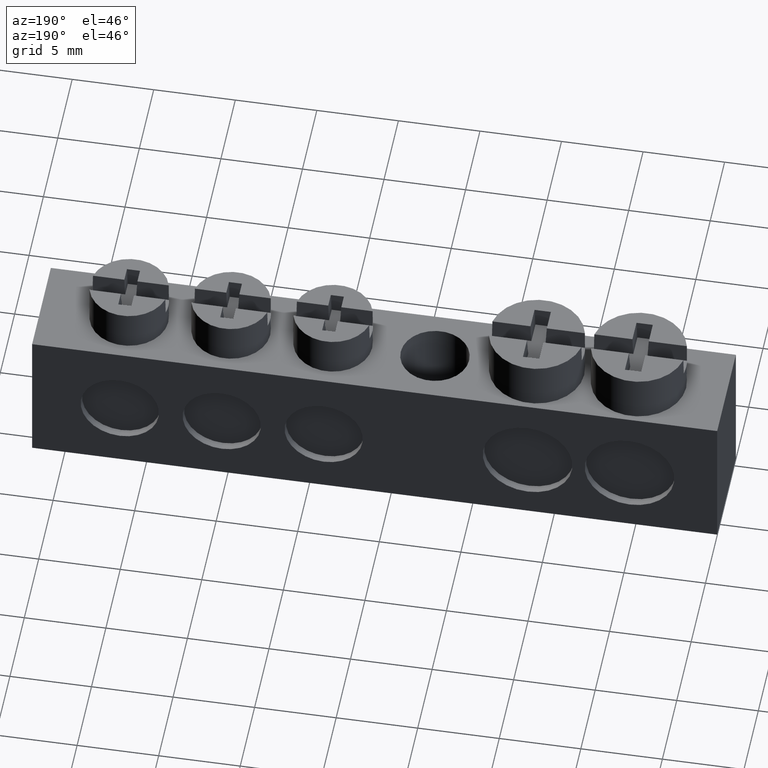
[diagram: clean part render]
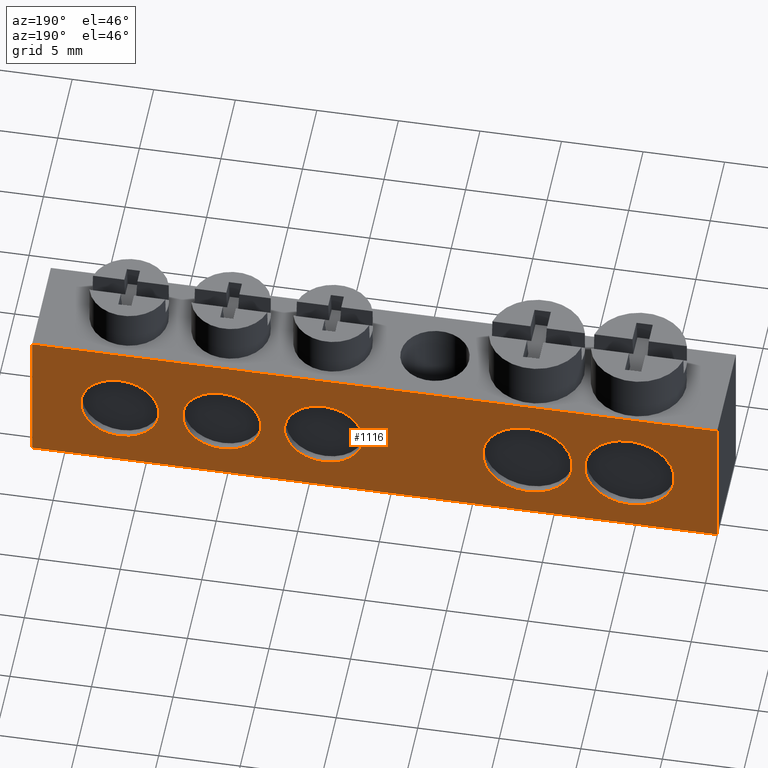
[diagram: same view with one face highlighted and labeled with its STEP entity id]
A machine part, auxiliary view. The second image highlights one B-rep face of the part: STEP entity #1116.
In plain terms, the highlighted planar face has unit normal (0, -1, 0).
Its self-contained STEP definition (entity closure, byte-faithful):
#191 = DIRECTION ( 'NONE',  ( -0.0000000000000000000, 1.000000000000000000, -0.0000000000000000000 ) ) ;
#193 = CARTESIAN_POINT ( 'NONE',  ( 24.02500000000000200, 6.500000000000001800, 4.399999999999915100 ) ) ;
#205 = DIRECTION ( 'NONE',  ( 0.0000000000000000000, 0.0000000000000000000, -1.000000000000000000 ) ) ;
#209 = DIRECTION ( 'NONE',  ( 0.0000000000000000000, 0.0000000000000000000, -1.000000000000000000 ) ) ;
#216 = CARTESIAN_POINT ( 'NONE',  ( 30.27499999999999900, 6.500000000000001800, 4.399999999999955100 ) ) ;
#221 = DIRECTION ( 'NONE',  ( -0.0000000000000000000, 1.000000000000000000, -0.0000000000000000000 ) ) ;
#238 = CARTESIAN_POINT ( 'NONE',  ( 36.52499999999999900, 6.500000000000001800, 4.400000000000000400 ) ) ;
#250 = DIRECTION ( 'NONE',  ( 0.0000000000000000000, 0.0000000000000000000, -1.000000000000000000 ) ) ;
#265 = DIRECTION ( 'NONE',  ( -0.0000000000000000000, 1.000000000000000000, -0.0000000000000000000 ) ) ;
#370 = CARTESIAN_POINT ( 'NONE',  ( 11.52500000000000000, 6.500000000000001800, 4.400000000000000400 ) ) ;
#371 = DIRECTION ( 'NONE',  ( 0.0000000000000000000, 0.0000000000000000000, -1.000000000000000000 ) ) ;
#372 = DIRECTION ( 'NONE',  ( -0.0000000000000000000, 1.000000000000000000, -0.0000000000000000000 ) ) ;
#380 = CARTESIAN_POINT ( 'NONE',  ( 5.275000000000000400, 6.500000000000001800, 4.400000000000000400 ) ) ;
#384 = DIRECTION ( 'NONE',  ( 0.0000000000000000000, 0.0000000000000000000, -1.000000000000000000 ) ) ;
#390 = DIRECTION ( 'NONE',  ( -0.0000000000000000000, 1.000000000000000000, -0.0000000000000000000 ) ) ;
#892 = EDGE_LOOP ( 'NONE', ( #2789, #2791 ) ) ;
#893 = EDGE_LOOP ( 'NONE', ( #2845, #2784, #2848, #2828 ) ) ;
#939 = EDGE_LOOP ( 'NONE', ( #2851, #2750 ) ) ;
#969 = EDGE_LOOP ( 'NONE', ( #2792, #2805 ) ) ;
#977 = EDGE_LOOP ( 'NONE', ( #2766, #2771 ) ) ;
#995 = EDGE_LOOP ( 'NONE', ( #2747, #2835 ) ) ;
#1116 = ADVANCED_FACE ( 'NONE', ( #3526, #3484, #3508, #3486, #3509, #3498 ), #3491, .F. ) ;
#1161 = EDGE_CURVE ( 'NONE', #2818, #2872, #1571, .T. ) ;
#1162 = EDGE_CURVE ( 'NONE', #2885, #2876, #1606, .T. ) ;
#1170 = EDGE_CURVE ( 'NONE', #2821, #2881, #1565, .T. ) ;
#1210 = EDGE_CURVE ( 'NONE', #2958, #2947, #1646, .T. ) ;
#1216 = EDGE_CURVE ( 'NONE', #2972, #2927, #1654, .T. ) ;
#1375 = EDGE_CURVE ( 'NONE', #3052, #3030, #1837, .T. ) ;
#1388 = EDGE_CURVE ( 'NONE', #3030, #3049, #1753, .T. ) ;
#1396 = EDGE_CURVE ( 'NONE', #2872, #2818, #2005, .T. ) ;
#1397 = EDGE_CURVE ( 'NONE', #3005, #3052, #1878, .T. ) ;
#1403 = EDGE_CURVE ( 'NONE', #2947, #2958, #1999, .T. ) ;
#1406 = EDGE_CURVE ( 'NONE', #2927, #2972, #2065, .T. ) ;
#1409 = EDGE_CURVE ( 'NONE', #2876, #2885, #2061, .T. ) ;
#1414 = EDGE_CURVE ( 'NONE', #2881, #2821, #2049, .T. ) ;
#1419 = EDGE_CURVE ( 'NONE', #3005, #3049, #2074, .T. ) ;
#1546 = AXIS2_PLACEMENT_3D ( 'NONE', #3480, #3492, #3504 ) ;
#1565 = CIRCLE ( 'NONE', #1582, 2.399999999999999900 ) ;
#1571 = CIRCLE ( 'NONE', #1579, 2.399999999999999900 ) ;
#1579 = AXIS2_PLACEMENT_3D ( 'NONE', #193, #191, #205 ) ;
#1582 = AXIS2_PLACEMENT_3D ( 'NONE', #238, #265, #250 ) ;
#1595 = AXIS2_PLACEMENT_3D ( 'NONE', #216, #221, #209 ) ;
#1606 = CIRCLE ( 'NONE', #1595, 2.399999999999999900 ) ;
#1634 = AXIS2_PLACEMENT_3D ( 'NONE', #380, #372, #384 ) ;
#1637 = AXIS2_PLACEMENT_3D ( 'NONE', #370, #390, #371 ) ;
#1646 = CIRCLE ( 'NONE', #1634, 2.750000000000000000 ) ;
#1654 = CIRCLE ( 'NONE', #1637, 2.750000000000000000 ) ;
#1753 = LINE ( 'NONE', #1775, #2008 ) ;
#1775 = CARTESIAN_POINT ( 'NONE',  ( 41.89999999999999900, 6.500000000000001800, 9.000000000000003600 ) ) ;
#1781 = CARTESIAN_POINT ( 'NONE',  ( 0.0000000000000000000, 6.500000000000001800, 9.000000000000003600 ) ) ;
#1808 = DIRECTION ( 'NONE',  ( 1.000000000000000000, -0.0000000000000000000, 0.0000000000000000000 ) ) ;
#1837 = LINE ( 'NONE', #1781, #1938 ) ;
#1867 = DIRECTION ( 'NONE',  ( -0.0000000000000000000, -0.0000000000000000000, 1.000000000000000000 ) ) ;
#1877 = DIRECTION ( 'NONE',  ( -0.0000000000000000000, 1.000000000000000000, -0.0000000000000000000 ) ) ;
#1878 = LINE ( 'NONE', #1888, #2009 ) ;
#1888 = CARTESIAN_POINT ( 'NONE',  ( -0.1000000000000000100, 6.500000000000001800, 9.000000000000003600 ) ) ;
#1893 = DIRECTION ( 'NONE',  ( -0.0000000000000000000, -0.0000000000000000000, -1.000000000000000000 ) ) ;
#1902 = CARTESIAN_POINT ( 'NONE',  ( 24.02500000000000200, 6.500000000000001800, 4.399999999999915100 ) ) ;
#1921 = DIRECTION ( 'NONE',  ( 0.0000000000000000000, 0.0000000000000000000, -1.000000000000000000 ) ) ;
#1938 = VECTOR ( 'NONE', #1808, 1000.000000000000000 ) ;
#1953 = CARTESIAN_POINT ( 'NONE',  ( 30.27499999999999900, 6.500000000000001800, 4.399999999999955100 ) ) ;
#1954 = CARTESIAN_POINT ( 'NONE',  ( 5.275000000000000400, 6.500000000000001800, 4.400000000000000400 ) ) ;
#1963 = AXIS2_PLACEMENT_3D ( 'NONE', #1954, #1989, #1971 ) ;
#1965 = CARTESIAN_POINT ( 'NONE',  ( 36.52499999999999900, 6.500000000000001800, 4.400000000000000400 ) ) ;
#1971 = DIRECTION ( 'NONE',  ( 0.0000000000000000000, 0.0000000000000000000, -1.000000000000000000 ) ) ;
#1975 = DIRECTION ( 'NONE',  ( 0.0000000000000000000, 0.0000000000000000000, -1.000000000000000000 ) ) ;
#1979 = DIRECTION ( 'NONE',  ( -0.0000000000000000000, 1.000000000000000000, -0.0000000000000000000 ) ) ;
#1985 = CARTESIAN_POINT ( 'NONE',  ( 11.52500000000000000, 6.500000000000001800, 4.400000000000000400 ) ) ;
#1989 = DIRECTION ( 'NONE',  ( -0.0000000000000000000, 1.000000000000000000, -0.0000000000000000000 ) ) ;
#1990 = AXIS2_PLACEMENT_3D ( 'NONE', #1902, #1877, #1921 ) ;
#1991 = DIRECTION ( 'NONE',  ( 0.0000000000000000000, 0.0000000000000000000, -1.000000000000000000 ) ) ;
#1992 = DIRECTION ( 'NONE',  ( -0.0000000000000000000, 1.000000000000000000, -0.0000000000000000000 ) ) ;
#1997 = DIRECTION ( 'NONE',  ( 0.0000000000000000000, 0.0000000000000000000, -1.000000000000000000 ) ) ;
#1999 = CIRCLE ( 'NONE', #1963, 2.750000000000000000 ) ;
#2000 = DIRECTION ( 'NONE',  ( -0.0000000000000000000, 1.000000000000000000, -0.0000000000000000000 ) ) ;
#2005 = CIRCLE ( 'NONE', #1990, 2.399999999999999900 ) ;
#2008 = VECTOR ( 'NONE', #1893, 1000.000000000000000 ) ;
#2009 = VECTOR ( 'NONE', #1867, 1000.000000000000000 ) ;
#2029 = AXIS2_PLACEMENT_3D ( 'NONE', #1985, #1979, #1991 ) ;
#2047 = AXIS2_PLACEMENT_3D ( 'NONE', #1965, #2000, #1975 ) ;
#2049 = CIRCLE ( 'NONE', #2047, 2.399999999999999900 ) ;
#2056 = AXIS2_PLACEMENT_3D ( 'NONE', #1953, #1992, #1997 ) ;
#2058 = VECTOR ( 'NONE', #2069, 1000.000000000000000 ) ;
#2061 = CIRCLE ( 'NONE', #2056, 2.399999999999999900 ) ;
#2065 = CIRCLE ( 'NONE', #2029, 2.750000000000000000 ) ;
#2067 = CARTESIAN_POINT ( 'NONE',  ( 24.02500000000000200, 6.500000000000001800, 6.799999999999915400 ) ) ;
#2069 = DIRECTION ( 'NONE',  ( 1.000000000000000000, -0.0000000000000000000, 0.0000000000000000000 ) ) ;
#2074 = LINE ( 'NONE', #2075, #2058 ) ;
#2075 = CARTESIAN_POINT ( 'NONE',  ( 0.0000000000000000000, 6.500000000000001800, 0.0000000000000000000 ) ) ;
#2081 = CARTESIAN_POINT ( 'NONE',  ( 24.02500000000000200, 6.500000000000001800, 1.999999999999915400 ) ) ;
#2083 = CARTESIAN_POINT ( 'NONE',  ( 36.52499999999999900, 6.500000000000001800, 2.000000000000000400 ) ) ;
#2091 = CARTESIAN_POINT ( 'NONE',  ( 30.27499999999999900, 6.500000000000001800, 6.799999999999955400 ) ) ;
#2096 = CARTESIAN_POINT ( 'NONE',  ( 30.27499999999999900, 6.500000000000001800, 1.999999999999955400 ) ) ;
#2107 = CARTESIAN_POINT ( 'NONE',  ( 36.52499999999999900, 6.500000000000001800, 6.800000000000000700 ) ) ;
#2133 = CARTESIAN_POINT ( 'NONE',  ( 11.52500000000000000, 6.500000000000001800, 7.150000000000000400 ) ) ;
#2178 = CARTESIAN_POINT ( 'NONE',  ( 5.275000000000000400, 6.500000000000001800, 7.150000000000000400 ) ) ;
#2192 = CARTESIAN_POINT ( 'NONE',  ( 11.52500000000000000, 6.500000000000001800, 1.650000000000000400 ) ) ;
#2199 = CARTESIAN_POINT ( 'NONE',  ( -0.1000000000000000100, 6.500000000000001800, 0.0000000000000000000 ) ) ;
#2201 = CARTESIAN_POINT ( 'NONE',  ( 5.275000000000000400, 6.500000000000001800, 1.650000000000000400 ) ) ;
#2228 = CARTESIAN_POINT ( 'NONE',  ( 41.89999999999999900, 6.500000000000001800, 0.0000000000000000000 ) ) ;
#2229 = CARTESIAN_POINT ( 'NONE',  ( -0.1000000000000000100, 6.500000000000001800, 9.000000000000003600 ) ) ;
#2245 = CARTESIAN_POINT ( 'NONE',  ( 41.89999999999999900, 6.500000000000001800, 9.000000000000003600 ) ) ;
#2747 = ORIENTED_EDGE ( 'NONE', *, *, #1162, .F. ) ;
#2750 = ORIENTED_EDGE ( 'NONE', *, *, #1414, .F. ) ;
#2766 = ORIENTED_EDGE ( 'NONE', *, *, #1210, .F. ) ;
#2771 = ORIENTED_EDGE ( 'NONE', *, *, #1403, .F. ) ;
#2784 = ORIENTED_EDGE ( 'NONE', *, *, #1388, .T. ) ;
#2789 = ORIENTED_EDGE ( 'NONE', *, *, #1216, .F. ) ;
#2791 = ORIENTED_EDGE ( 'NONE', *, *, #1406, .F. ) ;
#2792 = ORIENTED_EDGE ( 'NONE', *, *, #1161, .F. ) ;
#2805 = ORIENTED_EDGE ( 'NONE', *, *, #1396, .F. ) ;
#2818 = VERTEX_POINT ( 'NONE', #2081 ) ;
#2821 = VERTEX_POINT ( 'NONE', #2083 ) ;
#2828 = ORIENTED_EDGE ( 'NONE', *, *, #1397, .T. ) ;
#2835 = ORIENTED_EDGE ( 'NONE', *, *, #1409, .F. ) ;
#2845 = ORIENTED_EDGE ( 'NONE', *, *, #1375, .T. ) ;
#2848 = ORIENTED_EDGE ( 'NONE', *, *, #1419, .F. ) ;
#2851 = ORIENTED_EDGE ( 'NONE', *, *, #1170, .F. ) ;
#2872 = VERTEX_POINT ( 'NONE', #2067 ) ;
#2876 = VERTEX_POINT ( 'NONE', #2091 ) ;
#2881 = VERTEX_POINT ( 'NONE', #2107 ) ;
#2885 = VERTEX_POINT ( 'NONE', #2096 ) ;
#2927 = VERTEX_POINT ( 'NONE', #2133 ) ;
#2947 = VERTEX_POINT ( 'NONE', #2178 ) ;
#2958 = VERTEX_POINT ( 'NONE', #2201 ) ;
#2972 = VERTEX_POINT ( 'NONE', #2192 ) ;
#3005 = VERTEX_POINT ( 'NONE', #2199 ) ;
#3030 = VERTEX_POINT ( 'NONE', #2245 ) ;
#3049 = VERTEX_POINT ( 'NONE', #2228 ) ;
#3052 = VERTEX_POINT ( 'NONE', #2229 ) ;
#3480 = CARTESIAN_POINT ( 'NONE',  ( 0.0000000000000000000, 6.500000000000001800, 9.000000000000003600 ) ) ;
#3484 = FACE_BOUND ( 'NONE', #969, .T. ) ;
#3486 = FACE_BOUND ( 'NONE', #939, .T. ) ;
#3491 = PLANE ( 'NONE',  #1546 ) ;
#3492 = DIRECTION ( 'NONE',  ( 0.0000000000000000000, -1.000000000000000000, 0.0000000000000000000 ) ) ;
#3498 = FACE_BOUND ( 'NONE', #977, .T. ) ;
#3504 = DIRECTION ( 'NONE',  ( 0.0000000000000000000, -0.0000000000000000000, -1.000000000000000000 ) ) ;
#3508 = FACE_BOUND ( 'NONE', #995, .T. ) ;
#3509 = FACE_BOUND ( 'NONE', #892, .T. ) ;
#3526 = FACE_OUTER_BOUND ( 'NONE', #893, .T. ) ;